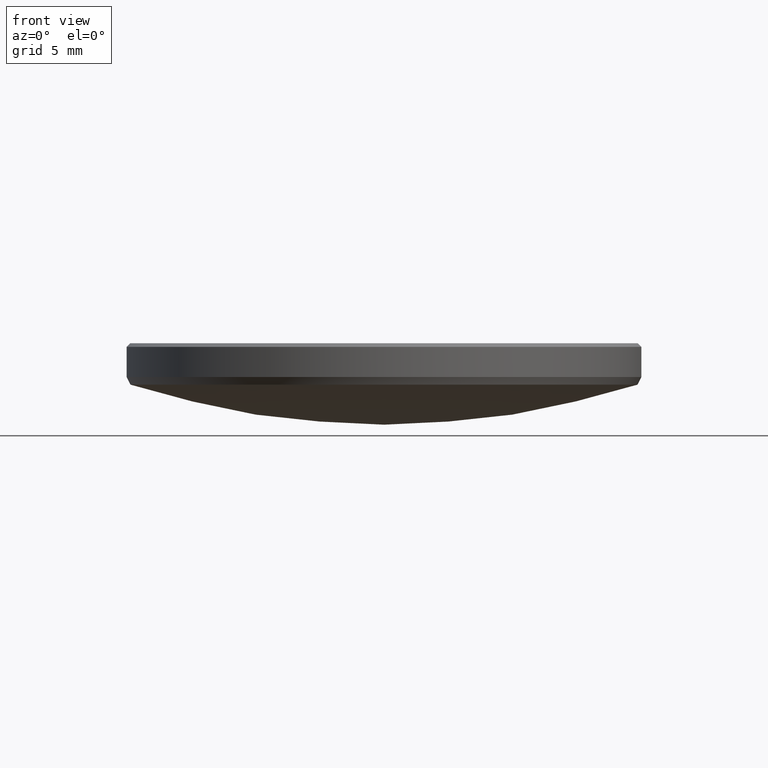
[diagram: clean part render]
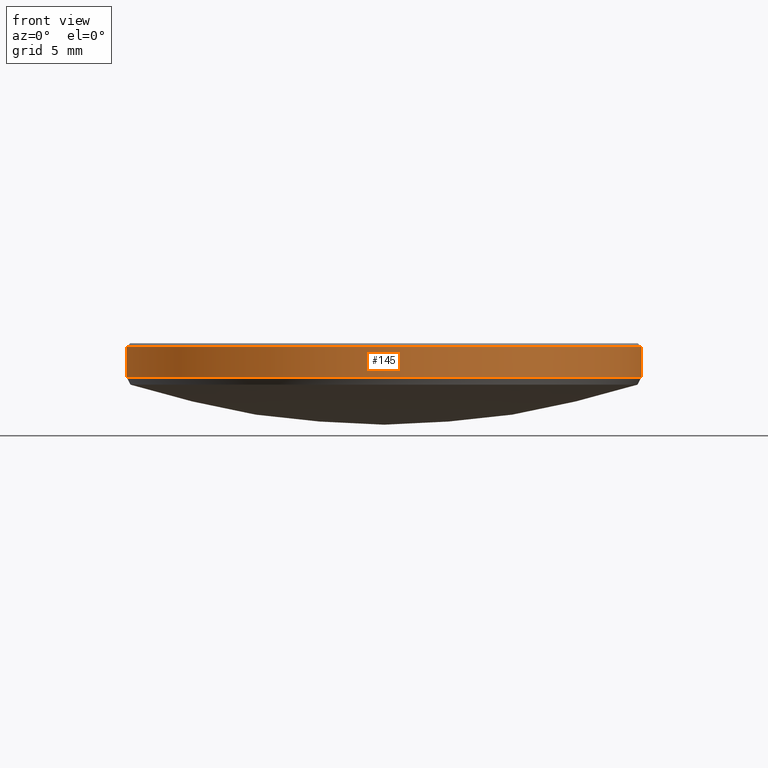
[diagram: same view with one face highlighted and labeled with its STEP entity id]
A machine part, front view. The second image highlights one B-rep face of the part: STEP entity #145.
In plain terms, the highlighted cylindrical surface (partial cylindrical patch) has radius 12.7 mm, axis along (-0, -0, -1).
Its self-contained STEP definition (entity closure, byte-faithful):
#3 = CARTESIAN_POINT ( 'NONE',  ( 12.69999999999999929, 1.555301434917138433E-15, 5.799999999999999822 ) ) ;
#4 = VERTEX_POINT ( 'NONE', #3 ) ;
#16 = CIRCLE ( 'NONE', #255, 12.69999999999999929 ) ;
#19 = ORIENTED_EDGE ( 'NONE', *, *, #234, .T. ) ;
#23 = AXIS2_PLACEMENT_3D ( 'NONE', #288, #56, #313 ) ;
#39 = ORIENTED_EDGE ( 'NONE', *, *, #152, .T. ) ;
#40 = DIRECTION ( 'NONE',  ( -1.000000000000000000, 0.000000000000000000, 0.000000000000000000 ) ) ;
#41 = DIRECTION ( 'NONE',  ( -0.000000000000000000, -0.000000000000000000, 1.000000000000000000 ) ) ;
#42 = CARTESIAN_POINT ( 'NONE',  ( 12.69999999999999929, 1.555301434917138433E-15, 10.00000000000000000 ) ) ;
#45 = CARTESIAN_POINT ( 'NONE',  ( 12.69999999999999929, 1.555301434917138433E-15, 4.313967534857077624 ) ) ;
#56 = DIRECTION ( 'NONE',  ( 0.000000000000000000, 0.000000000000000000, -1.000000000000000000 ) ) ;
#63 = CYLINDRICAL_SURFACE ( 'NONE', #246, 12.69999999999999929 ) ;
#64 = VECTOR ( 'NONE', #203, 1000.000000000000000 ) ;
#65 = VECTOR ( 'NONE', #151, 1000.000000000000000 ) ;
#68 = DIRECTION ( 'NONE',  ( -1.000000000000000000, 0.000000000000000000, 0.000000000000000000 ) ) ;
#89 = CARTESIAN_POINT ( 'NONE',  ( -12.69999999999999929, 0.000000000000000000, 5.799999999999999822 ) ) ;
#97 = LINE ( 'NONE', #275, #64 ) ;
#120 = ORIENTED_EDGE ( 'NONE', *, *, #327, .F. ) ;
#143 = VERTEX_POINT ( 'NONE', #241 ) ;
#145 = ADVANCED_FACE ( 'NONE', ( #295 ), #63, .T. ) ;
#151 = DIRECTION ( 'NONE',  ( -0.000000000000000000, -0.000000000000000000, -1.000000000000000000 ) ) ;
#152 = EDGE_CURVE ( 'NONE', #4, #276, #156, .T. ) ;
#156 = CIRCLE ( 'NONE', #23, 12.69999999999999929 ) ;
#161 = EDGE_CURVE ( 'NONE', #276, #143, #97, .T. ) ;
#170 = CARTESIAN_POINT ( 'NONE',  ( 0.000000000000000000, 0.000000000000000000, 10.00000000000000000 ) ) ;
#171 = CARTESIAN_POINT ( 'NONE',  ( 0.000000000000000000, 0.000000000000000000, 4.313967534857077624 ) ) ;
#194 = VERTEX_POINT ( 'NONE', #45 ) ;
#196 = EDGE_LOOP ( 'NONE', ( #120, #39, #232, #19 ) ) ;
#203 = DIRECTION ( 'NONE',  ( -0.000000000000000000, -0.000000000000000000, -1.000000000000000000 ) ) ;
#232 = ORIENTED_EDGE ( 'NONE', *, *, #161, .T. ) ;
#234 = EDGE_CURVE ( 'NONE', #143, #194, #16, .T. ) ;
#241 = CARTESIAN_POINT ( 'NONE',  ( -12.69999999999999929, 0.000000000000000000, 4.313967534857077624 ) ) ;
#242 = LINE ( 'NONE', #42, #65 ) ;
#246 = AXIS2_PLACEMENT_3D ( 'NONE', #170, #269, #40 ) ;
#255 = AXIS2_PLACEMENT_3D ( 'NONE', #171, #41, #68 ) ;
#269 = DIRECTION ( 'NONE',  ( -0.000000000000000000, -0.000000000000000000, -1.000000000000000000 ) ) ;
#275 = CARTESIAN_POINT ( 'NONE',  ( -12.69999999999999929, 0.000000000000000000, 10.00000000000000000 ) ) ;
#276 = VERTEX_POINT ( 'NONE', #89 ) ;
#288 = CARTESIAN_POINT ( 'NONE',  ( 0.000000000000000000, 0.000000000000000000, 5.799999999999999822 ) ) ;
#295 = FACE_OUTER_BOUND ( 'NONE', #196, .T. ) ;
#313 = DIRECTION ( 'NONE',  ( 1.000000000000000000, 0.000000000000000000, 0.000000000000000000 ) ) ;
#327 = EDGE_CURVE ( 'NONE', #4, #194, #242, .T. ) ;